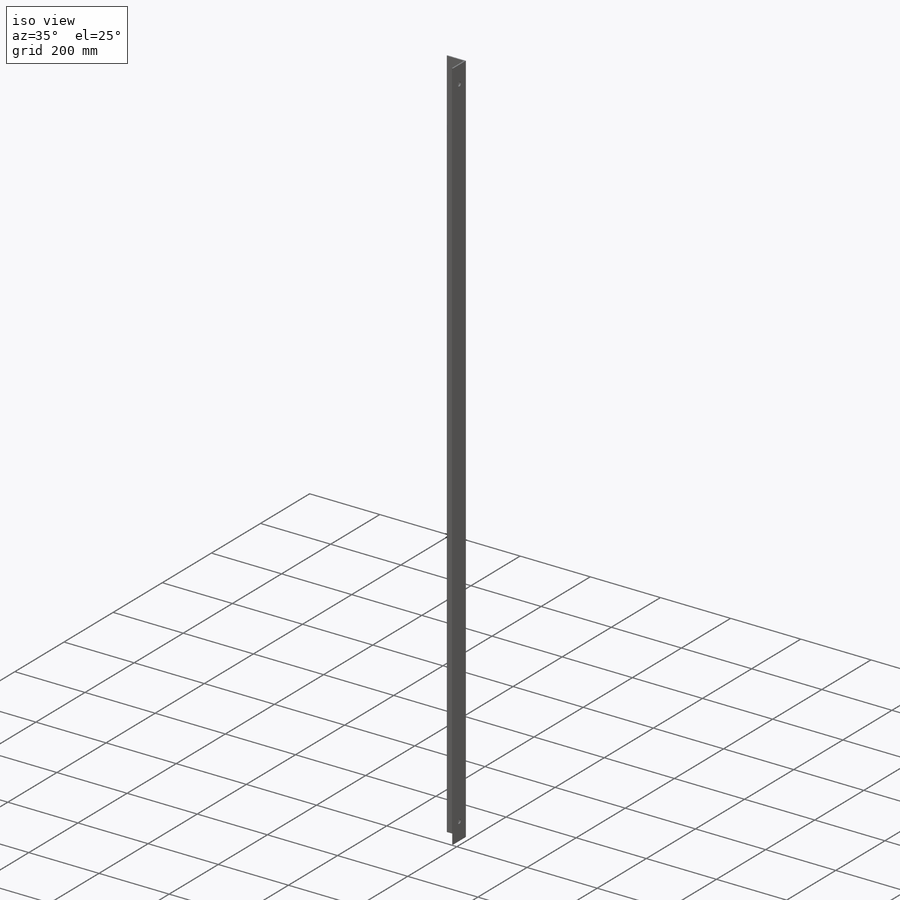
[diagram: iso view]
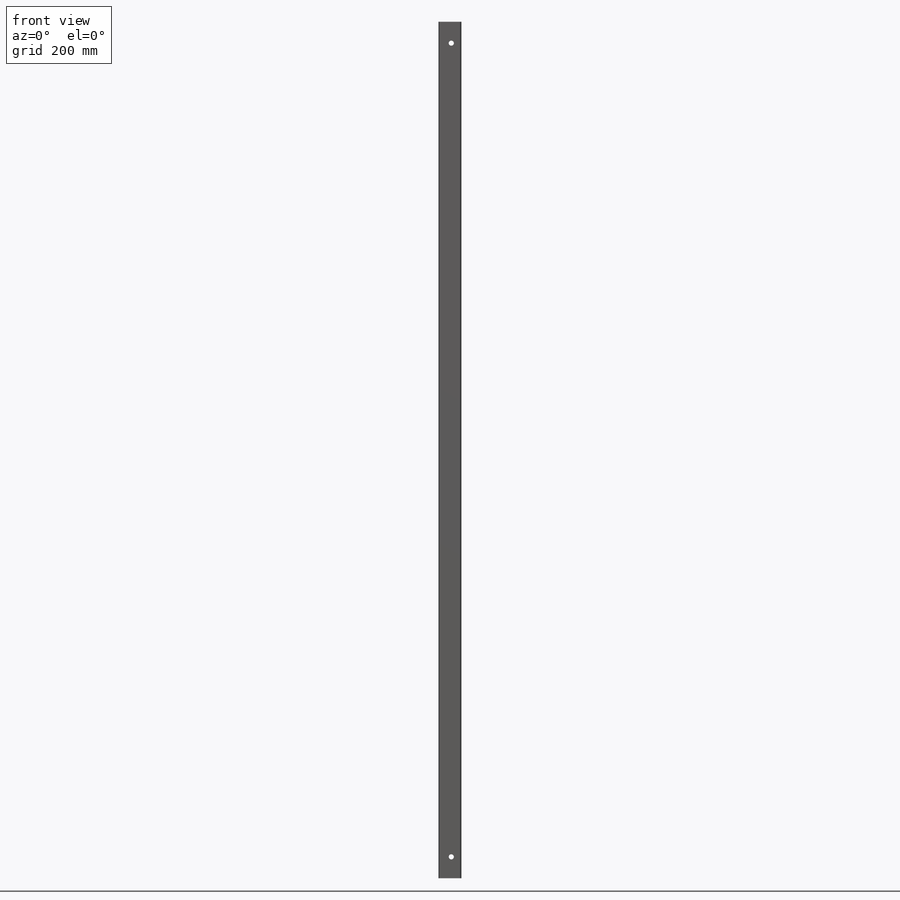
[diagram: front view]
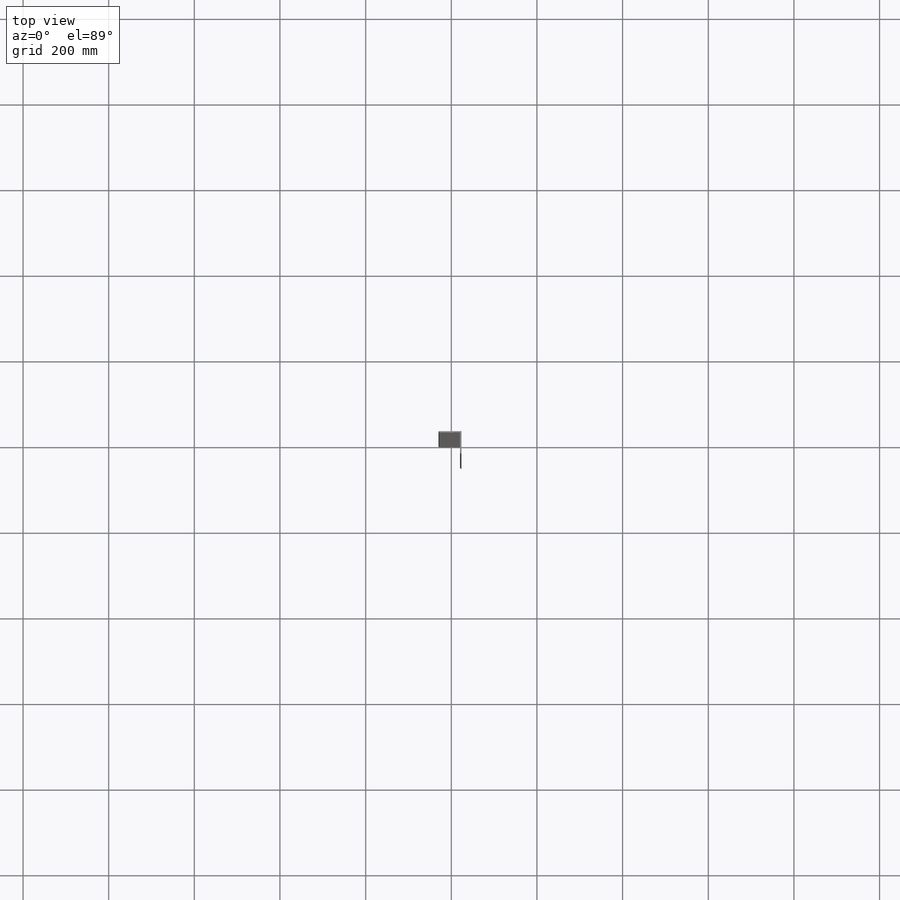
[diagram: top view]
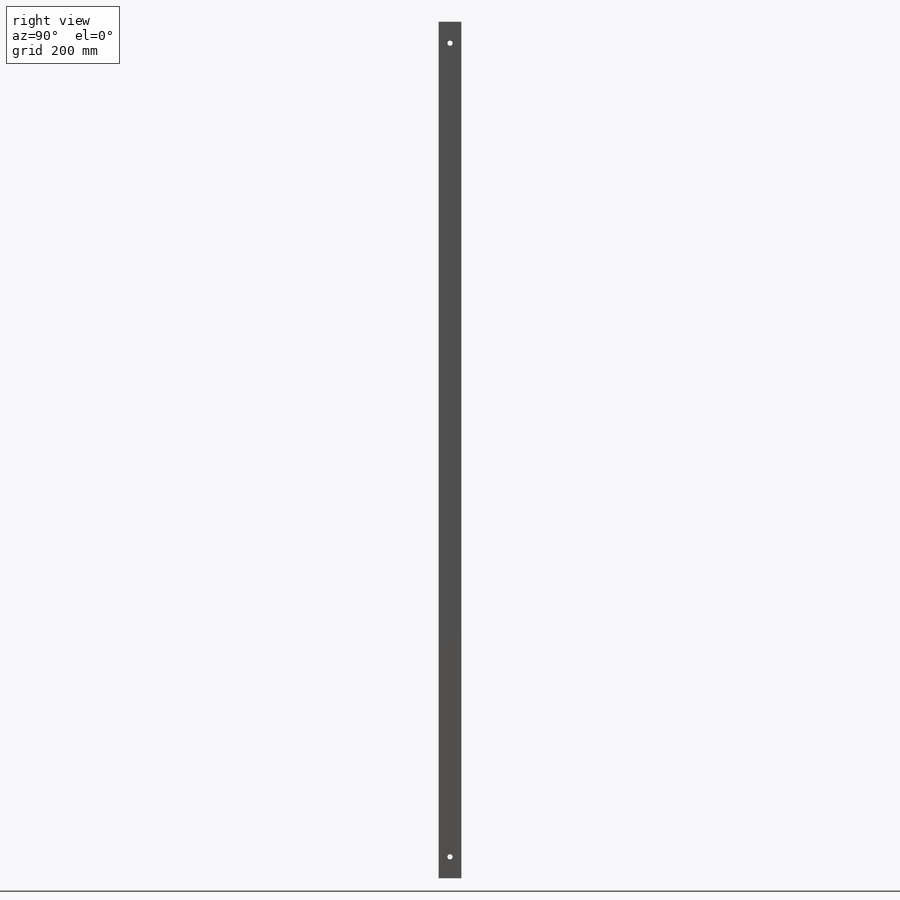
[diagram: right view]
SOLIDWORKS PART (.sldprt)
format: sldprt  version: not decoded by parser v0  size: 163,840 bytes
history: native  units: mm
features: material x4, cut_extrude x2, plane x1, sketch x1, extrude x1, fillet x1, pattern_linear x1 (+16 scaffold rows collapsed)
feature tree (27):
  scaffold x16  (default folders/planes/origin — collapsed)
  material  "材质 <未指定>"
  material  "草图2"
  material  "草图3"
  material  "草图5"
  plane  "前视基准面"
  sketch  "草图1"  dims[c1.D5=4.0mm c1.D6=4.0mm c1.D7=4.0mm c2.D6=4.0mm c2.D5=~9.159622mm c2.D4=4.0mm c3.D5=4.0mm c3.D4=4.0mm c4.D5=4.0mm c4.D1=3.0mm c4.D2=50.0mm c4.D3=50.0mm c4.D4=3.0mm]
  extrude  "凸台-拉伸1"  Depth=2000mm
  fillet  "圆角1"  Radius=0.1mm
  cut_extrude  "切除-拉伸1"  Depth=200mm
  cut_extrude  "切除-拉伸2"  Depth=200mm
  pattern_linear  "阵列(线性)1"  Count1=2 Count2=1 Spacing1=1900mm Spacing2=10mm
decode coverage: 6 of 6 modeling features carry decoded parameters
note: ~ marks probable driven/reference dimensions
note: suppression state not decoded; provenance and decode notes live in map.json
